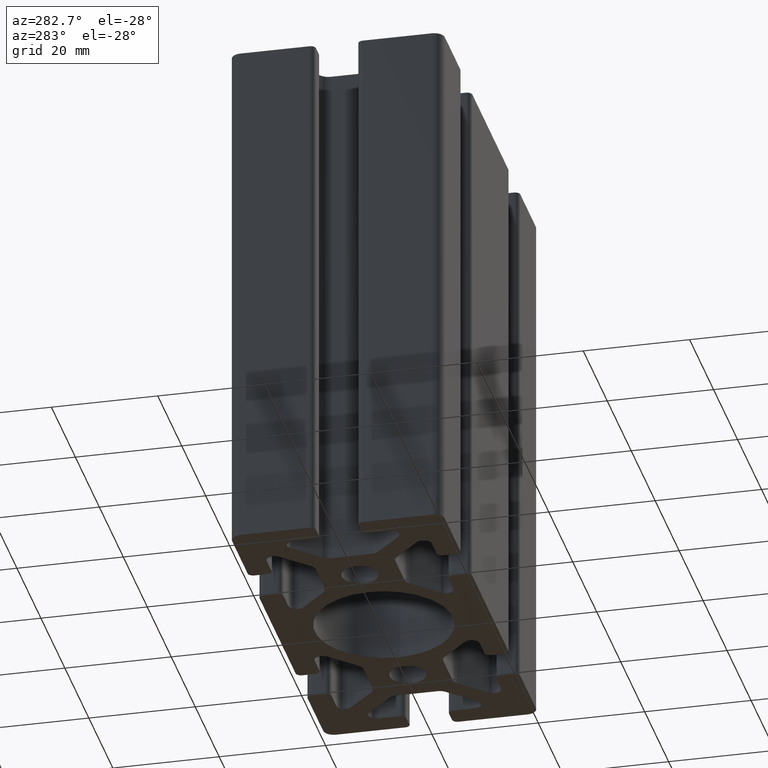
[diagram: clean part render]
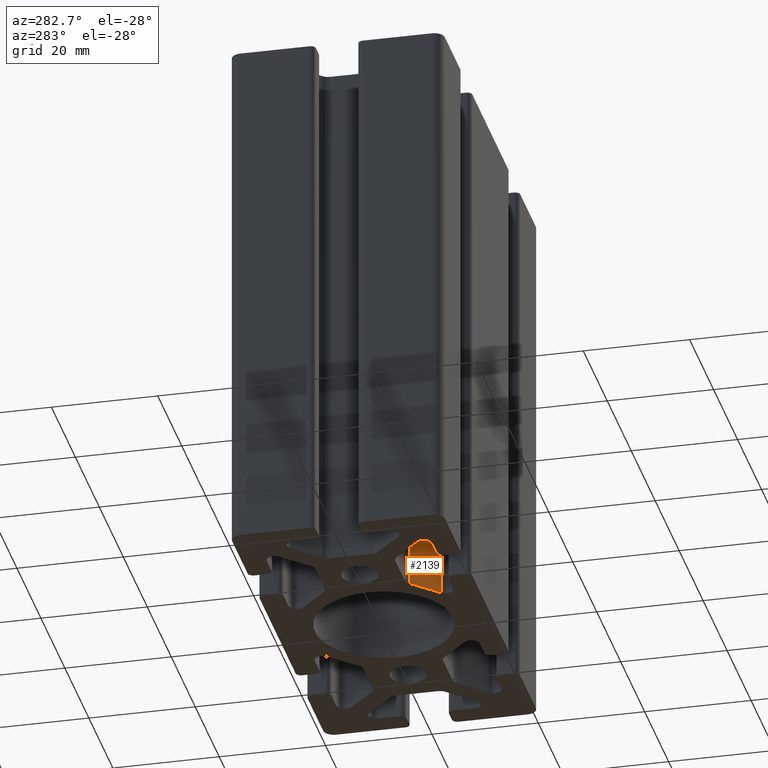
[diagram: same view with one face highlighted and labeled with its STEP entity id]
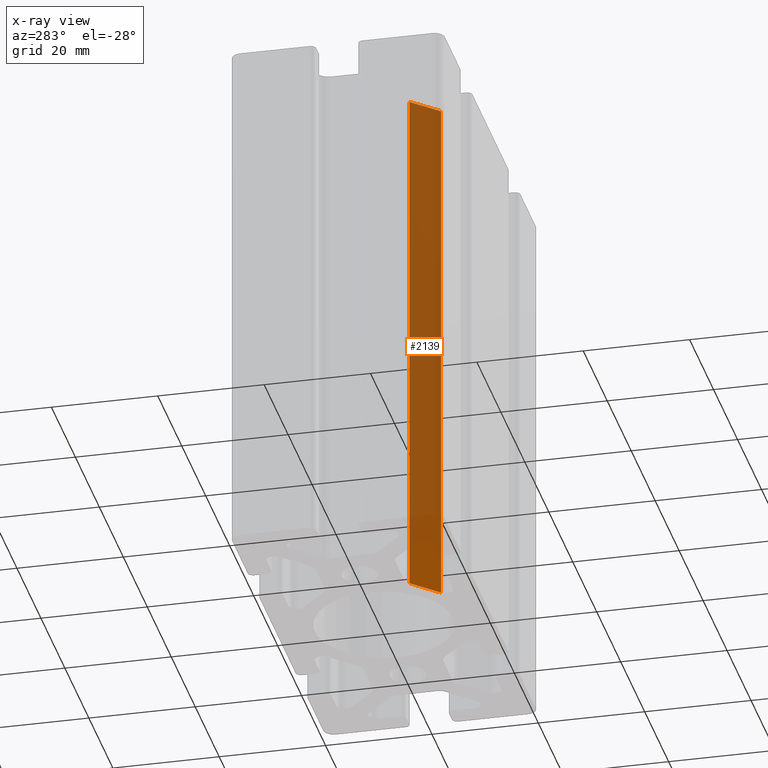
[diagram: x-ray of the same camera — body ghosted, the highlighted face saturated]
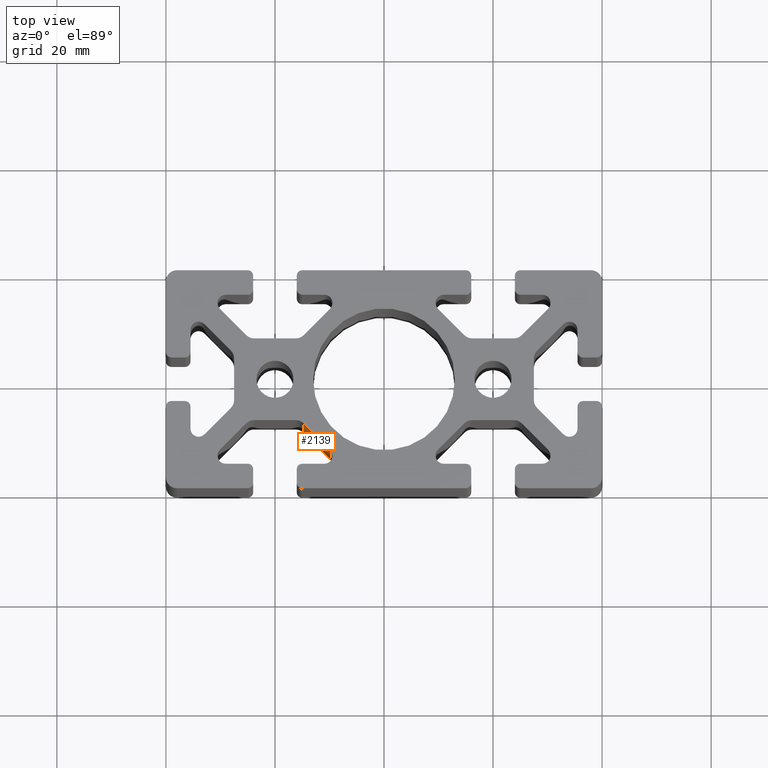
[diagram: same view with one face highlighted and labeled with its STEP entity id]
A machine part, auxiliary view. The second image highlights one B-rep face of the part: STEP entity #2139.
The next image is the same camera in x-ray: the body ghosted, the highlighted face saturated — about 91% of this face is hidden behind the body in this view.
A second angle (top view) of the same face is appended — the face is thin or edge-on in the first view.
In plain terms, the highlighted planar face has unit normal (0.7071, 0.7071, 0).
Its self-contained STEP definition (entity closure, byte-faithful):
#179=LINE('',#3559,#387);
#180=LINE('',#3563,#388);
#181=LINE('',#3565,#389);
#182=LINE('',#3566,#390);
#387=VECTOR('',#2906,100.);
#388=VECTOR('',#2911,6.86396103067893);
#389=VECTOR('',#2912,100.);
#390=VECTOR('',#2913,6.86396103067893);
#469=PLANE('',#2344);
#579=FACE_OUTER_BOUND('',#691,.T.);
#691=EDGE_LOOP('',(#1697,#1698,#1699,#1700));
#1013=VERTEX_POINT('',#3556);
#1014=VERTEX_POINT('',#3558);
#1015=VERTEX_POINT('',#3562);
#1016=VERTEX_POINT('',#3564);
#1302=EDGE_CURVE('',#1014,#1013,#179,.T.);
#1304=EDGE_CURVE('',#1015,#1013,#180,.T.);
#1305=EDGE_CURVE('',#1016,#1015,#181,.T.);
#1306=EDGE_CURVE('',#1014,#1016,#182,.T.);
#1697=ORIENTED_EDGE('',*,*,#1304,.F.);
#1698=ORIENTED_EDGE('',*,*,#1305,.F.);
#1699=ORIENTED_EDGE('',*,*,#1306,.F.);
#1700=ORIENTED_EDGE('',*,*,#1302,.T.);
#2139=ADVANCED_FACE('',(#579),#469,.F.);
#2344=AXIS2_PLACEMENT_3D('',#3561,#2909,#2910);
#2906=DIRECTION('',(0.,0.,1.));
#2909=DIRECTION('center_axis',(0.707106781186548,0.707106781186548,0.));
#2910=DIRECTION('ref_axis',(-0.707106781186547,0.707106781186548,0.));
#2911=DIRECTION('',(0.707106781186548,-0.707106781186548,0.));
#2912=DIRECTION('',(0.,0.,1.));
#2913=DIRECTION('',(-0.707106781186548,0.707106781186548,0.));
#3556=CARTESIAN_POINT('',(-9.88908729652601,-12.9393398282202,100.));
#3558=CARTESIAN_POINT('',(-9.88908729652601,-12.9393398282202,0.));
#3559=CARTESIAN_POINT('',(-9.88908729652601,-12.9393398282202,0.));
#3561=CARTESIAN_POINT('Origin',(-9.88908729652601,-12.9393398282202,0.));
#3562=CARTESIAN_POINT('',(-14.7426406871193,-8.08578643762691,100.));
#3563=CARTESIAN_POINT('',(-10.6516504294496,-12.1767766952966,100.));
#3564=CARTESIAN_POINT('',(-14.7426406871193,-8.08578643762691,0.));
#3565=CARTESIAN_POINT('',(-14.7426406871193,-8.08578643762691,0.));
#3566=CARTESIAN_POINT('',(-10.6516504294496,-12.1767766952966,0.));